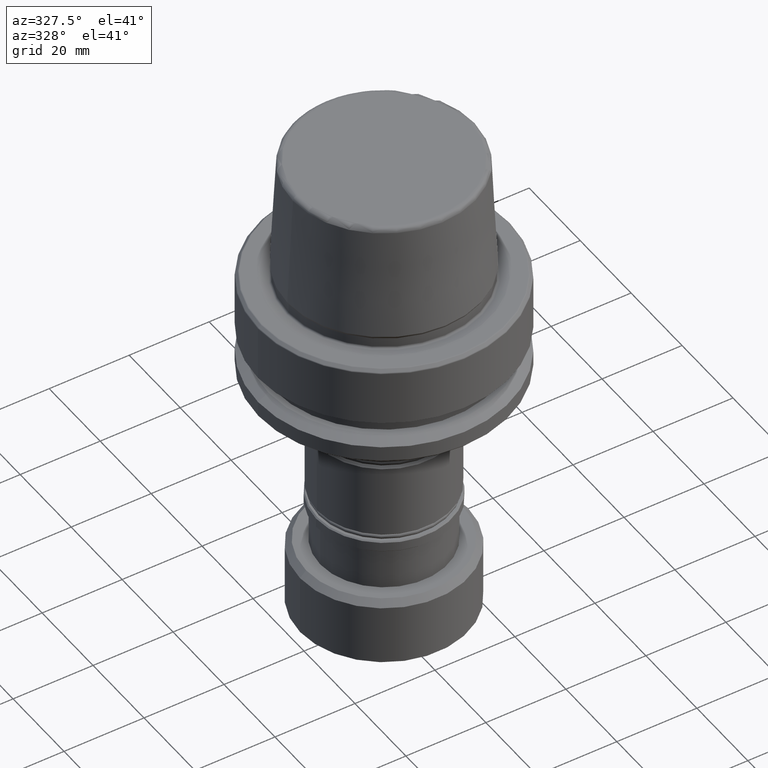
[diagram: clean part render]
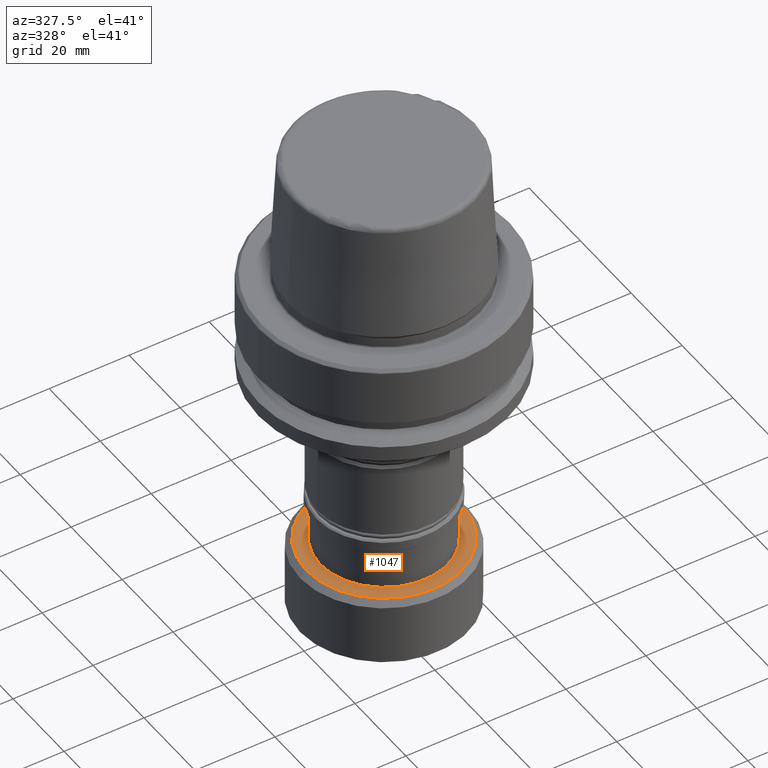
[diagram: same view with one face highlighted and labeled with its STEP entity id]
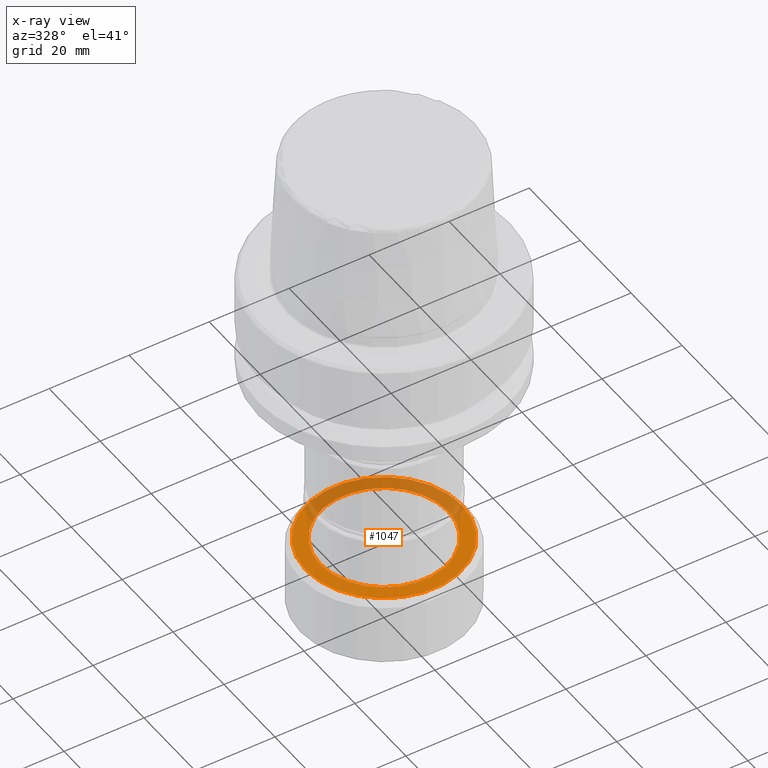
[diagram: x-ray of the same camera — body ghosted, the highlighted face saturated]
A machine part, auxiliary view. The second image highlights one B-rep face of the part: STEP entity #1047.
The next image is the same camera in x-ray: the body ghosted, the highlighted face saturated — about 36% of this face is hidden behind the body in this view.
In plain terms, the highlighted planar face has unit normal (0, -0, 1).
Its self-contained STEP definition (entity closure, byte-faithful):
#25 = ORIENTED_EDGE ( 'NONE', *, *, #186, .T. ) ;
#26 = VERTEX_POINT ( 'NONE', #171 ) ;
#47 = AXIS2_PLACEMENT_3D ( 'NONE', #166, #344, #1427 ) ;
#161 = CIRCLE ( 'NONE', #1048, 19.50000000000000000 ) ;
#166 = CARTESIAN_POINT ( 'NONE',  ( 0.0000000000000000000, 0.0000000000000000000, -74.00000000000001400 ) ) ;
#171 = CARTESIAN_POINT ( 'NONE',  ( 15.94999999999332400, 0.0000000000000000000, -74.00000000000000000 ) ) ;
#186 = EDGE_CURVE ( 'NONE', #1397, #1012, #323, .T. ) ;
#206 = ORIENTED_EDGE ( 'NONE', *, *, #401, .F. ) ;
#224 = ORIENTED_EDGE ( 'NONE', *, *, #1031, .F. ) ;
#226 = DIRECTION ( 'NONE',  ( -0.0000000000000000000, -0.0000000000000000000, 1.000000000000000000 ) ) ;
#323 = CIRCLE ( 'NONE', #619, 19.50000000000000000 ) ;
#333 = DIRECTION ( 'NONE',  ( -0.0000000000000000000, -0.0000000000000000000, 1.000000000000000000 ) ) ;
#344 = DIRECTION ( 'NONE',  ( 0.0000000000000000000, -0.0000000000000000000, 1.000000000000000000 ) ) ;
#401 = EDGE_CURVE ( 'NONE', #26, #673, #797, .T. ) ;
#411 = CARTESIAN_POINT ( 'NONE',  ( 19.50000000000000000, 2.479909768273389900E-015, -74.00000000000000000 ) ) ;
#462 = CARTESIAN_POINT ( 'NONE',  ( -19.50000000000000000, 0.0000000000000000000, -74.00000000000000000 ) ) ;
#465 = CIRCLE ( 'NONE', #1681, 15.94999999999332400 ) ;
#533 = EDGE_CURVE ( 'NONE', #1012, #1397, #161, .T. ) ;
#619 = AXIS2_PLACEMENT_3D ( 'NONE', #1575, #668, #1220 ) ;
#668 = DIRECTION ( 'NONE',  ( -0.0000000000000000000, -0.0000000000000000000, 1.000000000000000000 ) ) ;
#673 = VERTEX_POINT ( 'NONE', #1000 ) ;
#723 = DIRECTION ( 'NONE',  ( 1.000000000000000000, 0.0000000000000000000, 0.0000000000000000000 ) ) ;
#797 = CIRCLE ( 'NONE', #1510, 15.94999999999332400 ) ;
#860 = DIRECTION ( 'NONE',  ( 1.000000000000000000, 0.0000000000000000000, 0.0000000000000000000 ) ) ;
#888 = CARTESIAN_POINT ( 'NONE',  ( 0.0000000000000000000, 0.0000000000000000000, -74.00000000000000000 ) ) ;
#973 = EDGE_LOOP ( 'NONE', ( #206, #224 ) ) ;
#1000 = CARTESIAN_POINT ( 'NONE',  ( -15.94999999999332400, 1.953311644639210800E-015, -74.00000000000000000 ) ) ;
#1002 = CARTESIAN_POINT ( 'NONE',  ( 0.0000000000000000000, 0.0000000000000000000, -74.00000000000000000 ) ) ;
#1012 = VERTEX_POINT ( 'NONE', #411 ) ;
#1031 = EDGE_CURVE ( 'NONE', #673, #26, #465, .T. ) ;
#1047 = ADVANCED_FACE ( 'NONE', ( #1982, #1241 ), #1107, .T. ) ;
#1048 = AXIS2_PLACEMENT_3D ( 'NONE', #888, #226, #723 ) ;
#1107 = PLANE ( 'NONE',  #47 ) ;
#1220 = DIRECTION ( 'NONE',  ( 1.000000000000000000, 0.0000000000000000000, 0.0000000000000000000 ) ) ;
#1241 = FACE_BOUND ( 'NONE', #973, .T. ) ;
#1265 = CARTESIAN_POINT ( 'NONE',  ( 0.0000000000000000000, 0.0000000000000000000, -74.00000000000000000 ) ) ;
#1397 = VERTEX_POINT ( 'NONE', #462 ) ;
#1417 = DIRECTION ( 'NONE',  ( 1.000000000000000000, 0.0000000000000000000, 0.0000000000000000000 ) ) ;
#1427 = DIRECTION ( 'NONE',  ( 1.000000000000000000, 0.0000000000000000000, 0.0000000000000000000 ) ) ;
#1488 = ORIENTED_EDGE ( 'NONE', *, *, #533, .T. ) ;
#1510 = AXIS2_PLACEMENT_3D ( 'NONE', #1002, #1943, #860 ) ;
#1575 = CARTESIAN_POINT ( 'NONE',  ( 0.0000000000000000000, 0.0000000000000000000, -74.00000000000000000 ) ) ;
#1640 = EDGE_LOOP ( 'NONE', ( #25, #1488 ) ) ;
#1681 = AXIS2_PLACEMENT_3D ( 'NONE', #1265, #333, #1417 ) ;
#1943 = DIRECTION ( 'NONE',  ( -0.0000000000000000000, -0.0000000000000000000, 1.000000000000000000 ) ) ;
#1982 = FACE_OUTER_BOUND ( 'NONE', #1640, .T. ) ;